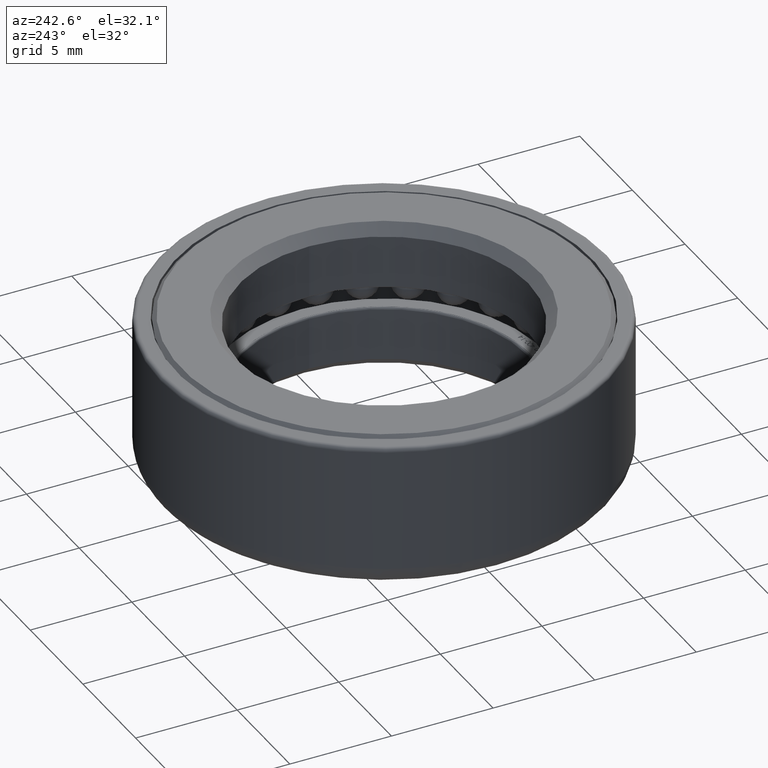
[diagram: clean part render]
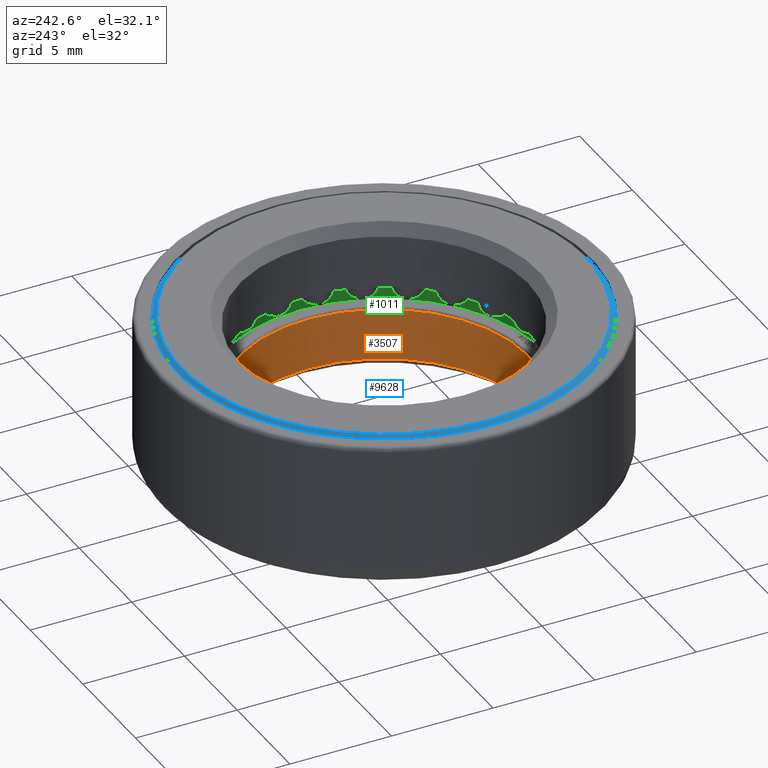
[diagram: same view with three faces highlighted in distinct colors, each labeled with its STEP entity id]
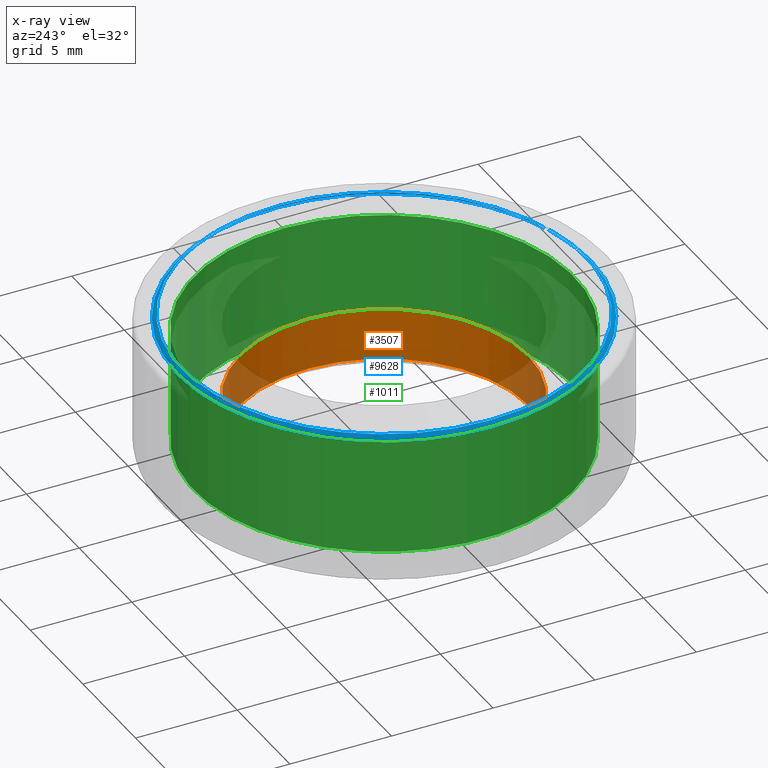
[diagram: x-ray of the same camera — body ghosted, the three highlighted faces saturated]
A machine part, auxiliary view with three faces highlighted in distinct colors.
The next image is the same camera in x-ray (body ghosted, the three faces saturated) — at least one of them is partly hidden behind the body in this view.
Their STEP definitions:

[orange] entity #3507 — the highlighted cylindrical surface (bore or boss wall) has radius 7.1 mm, axis along (-0, -0, 1).
#203 = DIRECTION ( 'NONE',  ( -1.000000000000000000, 0.0000000000000000000, 0.0000000000000000000 ) ) ;
#1713 = CARTESIAN_POINT ( 'NONE',  ( -7.099999999999999600, 0.0000000000000000000, -0.5999999999999999800 ) ) ;
#2206 = DIRECTION ( 'NONE',  ( -0.0000000000000000000, -0.0000000000000000000, 1.000000000000000000 ) ) ;
#2542 = VERTEX_POINT ( 'NONE', #6289 ) ;
#2676 = EDGE_LOOP ( 'NONE', ( #7587 ) ) ;
#2757 = DIRECTION ( 'NONE',  ( 1.000000000000000000, 0.0000000000000000000, 0.0000000000000000000 ) ) ;
#2872 = DIRECTION ( 'NONE',  ( -0.0000000000000000000, -0.0000000000000000000, -1.000000000000000000 ) ) ;
#2934 = ORIENTED_EDGE ( 'NONE', *, *, #8910, .T. ) ;
#3005 = CARTESIAN_POINT ( 'NONE',  ( 0.0000000000000000000, 0.0000000000000000000, 0.0000000000000000000 ) ) ;
#3507 = ADVANCED_FACE ( 'NONE', ( #8406, #9708 ), #3633, .F. ) ;
#3633 = CYLINDRICAL_SURFACE ( 'NONE', #7281, 7.099999999999999600 ) ;
#4412 = CARTESIAN_POINT ( 'NONE',  ( 0.0000000000000000000, 0.0000000000000000000, -3.149999999999997200 ) ) ;
#4451 = CIRCLE ( 'NONE', #9058, 7.099999999999999600 ) ;
#5071 = EDGE_CURVE ( 'NONE', #2542, #2542, #4451, .T. ) ;
#6289 = CARTESIAN_POINT ( 'NONE',  ( 7.099999999999999600, 0.0000000000000000000, -3.149999999999997200 ) ) ;
#6785 = EDGE_LOOP ( 'NONE', ( #2934 ) ) ;
#7080 = DIRECTION ( 'NONE',  ( -0.0000000000000000000, -0.0000000000000000000, 1.000000000000000000 ) ) ;
#7281 = AXIS2_PLACEMENT_3D ( 'NONE', #3005, #2206, #8294 ) ;
#7587 = ORIENTED_EDGE ( 'NONE', *, *, #5071, .T. ) ;
#8294 = DIRECTION ( 'NONE',  ( 1.000000000000000000, 0.0000000000000000000, 0.0000000000000000000 ) ) ;
#8361 = CIRCLE ( 'NONE', #9896, 7.099999999999999600 ) ;
#8406 = FACE_OUTER_BOUND ( 'NONE', #6785, .T. ) ;
#8754 = VERTEX_POINT ( 'NONE', #1713 ) ;
#8910 = EDGE_CURVE ( 'NONE', #8754, #8754, #8361, .T. ) ;
#9058 = AXIS2_PLACEMENT_3D ( 'NONE', #4412, #2872, #2757 ) ;
#9349 = CARTESIAN_POINT ( 'NONE',  ( 0.0000000000000000000, 0.0000000000000000000, -0.5999999999999999800 ) ) ;
#9708 = FACE_OUTER_BOUND ( 'NONE', #2676, .T. ) ;
#9896 = AXIS2_PLACEMENT_3D ( 'NONE', #9349, #7080, #203 ) ;

[blue] entity #9628 — the highlighted conical surface has half-angle 45 deg.
#347 = AXIS2_PLACEMENT_3D ( 'NONE', #1812, #4890, #8690 ) ;
#419 = EDGE_LOOP ( 'NONE', ( #2384 ) ) ;
#1124 = CIRCLE ( 'NONE', #8723, 10.14999999999999900 ) ;
#1495 = CARTESIAN_POINT ( 'NONE',  ( 0.0000000000000000000, 0.0000000000000000000, 3.450000000000012200 ) ) ;
#1724 = ORIENTED_EDGE ( 'NONE', *, *, #9745, .F. ) ;
#1812 = CARTESIAN_POINT ( 'NONE',  ( 0.0000000000000000000, 0.0000000000000000000, 3.650000000000000400 ) ) ;
#2384 = ORIENTED_EDGE ( 'NONE', *, *, #3196, .F. ) ;
#3030 = DIRECTION ( 'NONE',  ( 0.0000000000000000000, 0.0000000000000000000, -1.000000000000000000 ) ) ;
#3196 = EDGE_CURVE ( 'NONE', #4592, #4592, #6762, .T. ) ;
#3664 = FACE_OUTER_BOUND ( 'NONE', #3751, .T. ) ;
#3751 = EDGE_LOOP ( 'NONE', ( #1724 ) ) ;
#4592 = VERTEX_POINT ( 'NONE', #7097 ) ;
#4890 = DIRECTION ( 'NONE',  ( 0.0000000000000000000, 0.0000000000000000000, -1.000000000000000000 ) ) ;
#5462 = DIRECTION ( 'NONE',  ( -1.000000000000000000, 0.0000000000000000000, 0.0000000000000000000 ) ) ;
#5567 = CARTESIAN_POINT ( 'NONE',  ( -10.14999999999999900, 0.0000000000000000000, 3.450000000000012200 ) ) ;
#6071 = DIRECTION ( 'NONE',  ( -1.000000000000000000, 0.0000000000000000000, 0.0000000000000000000 ) ) ;
#6367 = VERTEX_POINT ( 'NONE', #5567 ) ;
#6573 = AXIS2_PLACEMENT_3D ( 'NONE', #9409, #9318, #5462 ) ;
#6762 = CIRCLE ( 'NONE', #6573, 9.950000000000011700 ) ;
#7097 = CARTESIAN_POINT ( 'NONE',  ( -9.950000000000011700, 0.0000000000000000000, 3.650000000000000400 ) ) ;
#8060 = CONICAL_SURFACE ( 'NONE', #347, 9.950000000000011700, 0.7853981633974482800 ) ;
#8690 = DIRECTION ( 'NONE',  ( -1.000000000000000000, 0.0000000000000000000, 0.0000000000000000000 ) ) ;
#8723 = AXIS2_PLACEMENT_3D ( 'NONE', #1495, #3030, #6071 ) ;
#9318 = DIRECTION ( 'NONE',  ( -0.0000000000000000000, -0.0000000000000000000, 1.000000000000000000 ) ) ;
#9409 = CARTESIAN_POINT ( 'NONE',  ( 0.0000000000000000000, 0.0000000000000000000, 3.650000000000000400 ) ) ;
#9486 = FACE_BOUND ( 'NONE', #419, .T. ) ;
#9628 = ADVANCED_FACE ( 'NONE', ( #3664, #9486 ), #8060, .T. ) ;
#9745 = EDGE_CURVE ( 'NONE', #6367, #6367, #1124, .T. ) ;

[green] entity #1011 — the highlighted cylindrical surface (bore or boss wall) has radius 9.35 mm, axis along (-0, -0, 1).
#177 = EDGE_LOOP ( 'NONE', ( #2750 ) ) ;
#289 = EDGE_LOOP ( 'NONE', ( #351 ) ) ;
#351 = ORIENTED_EDGE ( 'NONE', *, *, #8685, .T. ) ;
#982 = DIRECTION ( 'NONE',  ( 1.000000000000000000, 0.0000000000000000000, 0.0000000000000000000 ) ) ;
#1011 = ADVANCED_FACE ( 'NONE', ( #5926, #2562 ), #7130, .F. ) ;
#1308 = CIRCLE ( 'NONE', #5273, 9.349999999999999600 ) ;
#2562 = FACE_OUTER_BOUND ( 'NONE', #289, .T. ) ;
#2750 = ORIENTED_EDGE ( 'NONE', *, *, #7784, .F. ) ;
#2850 = DIRECTION ( 'NONE',  ( 1.000000000000000000, 0.0000000000000000000, 0.0000000000000000000 ) ) ;
#4124 = DIRECTION ( 'NONE',  ( -0.0000000000000000000, -0.0000000000000000000, 1.000000000000000000 ) ) ;
#4298 = DIRECTION ( 'NONE',  ( -0.0000000000000000000, -0.0000000000000000000, 1.000000000000000000 ) ) ;
#4388 = DIRECTION ( 'NONE',  ( 1.000000000000000000, 0.0000000000000000000, 0.0000000000000000000 ) ) ;
#4699 = VERTEX_POINT ( 'NONE', #4756 ) ;
#4756 = CARTESIAN_POINT ( 'NONE',  ( 9.349999999999999600, 0.0000000000000000000, -2.799999999999999400 ) ) ;
#5273 = AXIS2_PLACEMENT_3D ( 'NONE', #5893, #4298, #2850 ) ;
#5893 = CARTESIAN_POINT ( 'NONE',  ( 0.0000000000000000000, 0.0000000000000000000, 2.850000000000000100 ) ) ;
#5926 = FACE_OUTER_BOUND ( 'NONE', #177, .T. ) ;
#5946 = CARTESIAN_POINT ( 'NONE',  ( 0.0000000000000000000, 0.0000000000000000000, -2.799999999999999400 ) ) ;
#6046 = DIRECTION ( 'NONE',  ( -0.0000000000000000000, -0.0000000000000000000, 1.000000000000000000 ) ) ;
#6251 = VERTEX_POINT ( 'NONE', #7802 ) ;
#7130 = CYLINDRICAL_SURFACE ( 'NONE', #8877, 9.349999999999999600 ) ;
#7784 = EDGE_CURVE ( 'NONE', #4699, #4699, #9547, .T. ) ;
#7802 = CARTESIAN_POINT ( 'NONE',  ( 9.349999999999999600, 0.0000000000000000000, 2.850000000000000100 ) ) ;
#8685 = EDGE_CURVE ( 'NONE', #6251, #6251, #1308, .T. ) ;
#8877 = AXIS2_PLACEMENT_3D ( 'NONE', #9366, #4124, #982 ) ;
#9243 = AXIS2_PLACEMENT_3D ( 'NONE', #5946, #6046, #4388 ) ;
#9366 = CARTESIAN_POINT ( 'NONE',  ( 0.0000000000000000000, 0.0000000000000000000, 0.0000000000000000000 ) ) ;
#9547 = CIRCLE ( 'NONE', #9243, 9.349999999999999600 ) ;